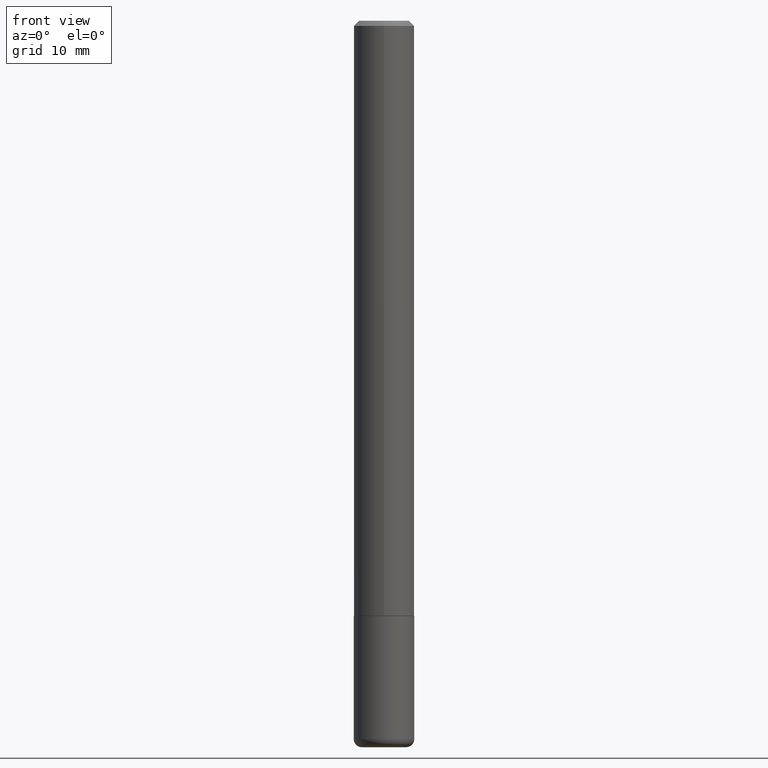
[diagram: clean part render]
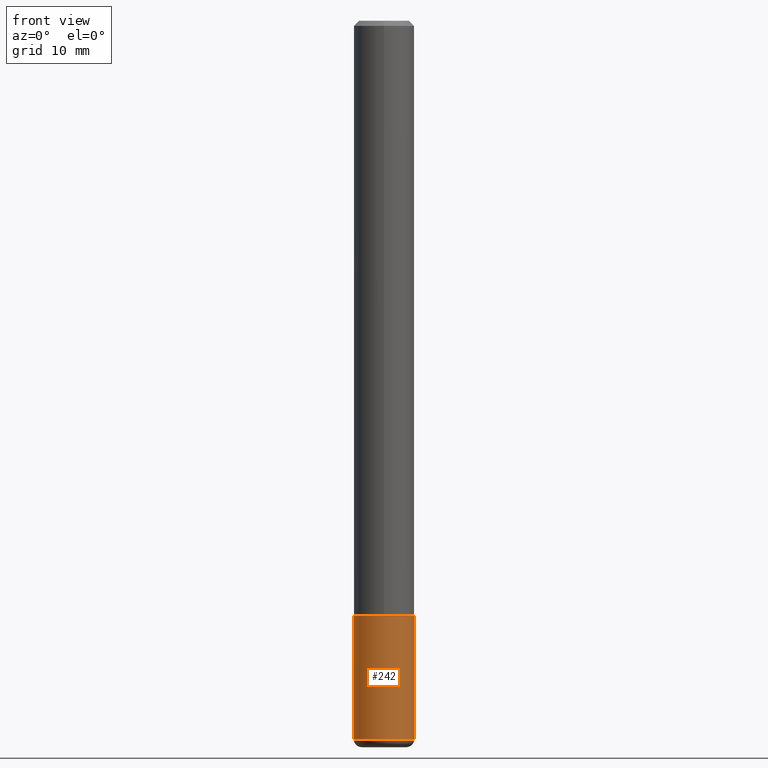
[diagram: same view with one face highlighted and labeled with its STEP entity id]
A machine part, front view. The second image highlights one B-rep face of the part: STEP entity #242.
In plain terms, the highlighted cylindrical surface (edge-blend (fillet) strip) has radius 2.9997 mm, axis along (-0, 0, 1).
Its self-contained STEP definition (entity closure, byte-faithful):
#4 = DIRECTION ( 'NONE',  ( -2.445468806185136597E-29, 3.491481338843145583E-15, 1.000000000000000000 ) ) ;
#25 = EDGE_CURVE ( 'NONE', #313, #71, #79, .T. ) ;
#26 = CARTESIAN_POINT ( 'NONE',  ( 5.680334943006835158E-29, -8.110012853864858834E-15, -2.322799999999999976 ) ) ;
#27 = AXIS2_PLACEMENT_3D ( 'NONE', #26, #4, #119 ) ;
#28 = FACE_OUTER_BOUND ( 'NONE', #41, .T. ) ;
#37 = VERTEX_POINT ( 'NONE', #334 ) ;
#41 = EDGE_LOOP ( 'NONE', ( #181, #168, #156, #391 ) ) ;
#42 = VECTOR ( 'NONE', #209, 39.37007874015748143 ) ;
#50 = LINE ( 'NONE', #116, #42 ) ;
#52 = CARTESIAN_POINT ( 'NONE',  ( 0.1181000000000000383, -8.934700746099607097E-15, -2.322799999999999976 ) ) ;
#71 = VERTEX_POINT ( 'NONE', #52 ) ;
#79 = LINE ( 'NONE', #267, #409 ) ;
#86 = AXIS2_PLACEMENT_3D ( 'NONE', #285, #384, #127 ) ;
#93 = CARTESIAN_POINT ( 'NONE',  ( 0.1181000000000001215, -1.061165923314597048E-14, -2.803100000000000147 ) ) ;
#99 = EDGE_CURVE ( 'NONE', #37, #313, #252, .T. ) ;
#115 = DIRECTION ( 'NONE',  ( -2.445468806185136597E-29, 3.491481338843145583E-15, 1.000000000000000000 ) ) ;
#116 = CARTESIAN_POINT ( 'NONE',  ( -0.1181000000000000105, 8.391509709326783943E-16, -5.809262341591044484E-30 ) ) ;
#119 = DIRECTION ( 'NONE',  ( 1.000000000000000000, -6.982962677686270655E-15, 0.000000000000000000 ) ) ;
#127 = DIRECTION ( 'NONE',  ( 1.000000000000000000, -6.982962677686267499E-15, 4.876176775795936353E-29 ) ) ;
#145 = DIRECTION ( 'NONE',  ( 1.000000000000000000, -6.982962677686273021E-15, 0.000000000000000000 ) ) ;
#147 = EDGE_CURVE ( 'NONE', #37, #354, #50, .T. ) ;
#148 = CARTESIAN_POINT ( 'NONE',  ( 6.854893610617556719E-29, -9.786971340911220638E-15, -2.803100000000000147 ) ) ;
#150 = CYLINDRICAL_SURFACE ( 'NONE', #86, 0.1181000000000000105 ) ;
#156 = ORIENTED_EDGE ( 'NONE', *, *, #25, .T. ) ;
#168 = ORIENTED_EDGE ( 'NONE', *, *, #99, .T. ) ;
#181 = ORIENTED_EDGE ( 'NONE', *, *, #147, .F. ) ;
#207 = CIRCLE ( 'NONE', #27, 0.1181000000000000383 ) ;
#209 = DIRECTION ( 'NONE',  ( -2.445468806185136877E-29, 3.491481338843145188E-15, 1.000000000000000000 ) ) ;
#235 = DIRECTION ( 'NONE',  ( -2.445468806185136877E-29, 3.491481338843145188E-15, 1.000000000000000000 ) ) ;
#242 = ADVANCED_FACE ( 'NONE', ( #28 ), #150, .T. ) ;
#252 = CIRCLE ( 'NONE', #297, 0.1180999999999999966 ) ;
#267 = CARTESIAN_POINT ( 'NONE',  ( 0.1181000000000000105, -8.246878922347482626E-16, 5.758764772215001141E-30 ) ) ;
#285 = CARTESIAN_POINT ( 'NONE',  ( 0.000000000000000000, 0.000000000000000000, 0.000000000000000000 ) ) ;
#288 = CARTESIAN_POINT ( 'NONE',  ( -0.1181000000000000522, -8.109341126455360750E-15, -2.322799999999999976 ) ) ;
#297 = AXIS2_PLACEMENT_3D ( 'NONE', #148, #115, #145 ) ;
#313 = VERTEX_POINT ( 'NONE', #93 ) ;
#334 = CARTESIAN_POINT ( 'NONE',  ( -0.1181000000000001215, -8.947820369978543230E-15, -2.803100000000000147 ) ) ;
#354 = VERTEX_POINT ( 'NONE', #288 ) ;
#384 = DIRECTION ( 'NONE',  ( -2.445468806185136597E-29, 3.491481338843145583E-15, 1.000000000000000000 ) ) ;
#391 = ORIENTED_EDGE ( 'NONE', *, *, #392, .F. ) ;
#392 = EDGE_CURVE ( 'NONE', #354, #71, #207, .T. ) ;
#409 = VECTOR ( 'NONE', #235, 39.37007874015748143 ) ;